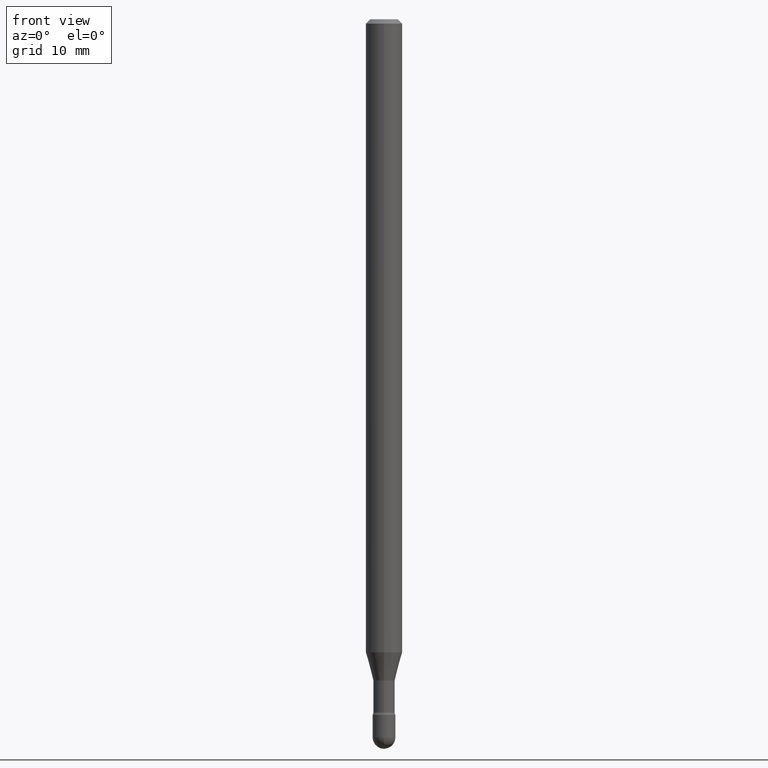
[diagram: clean part render]
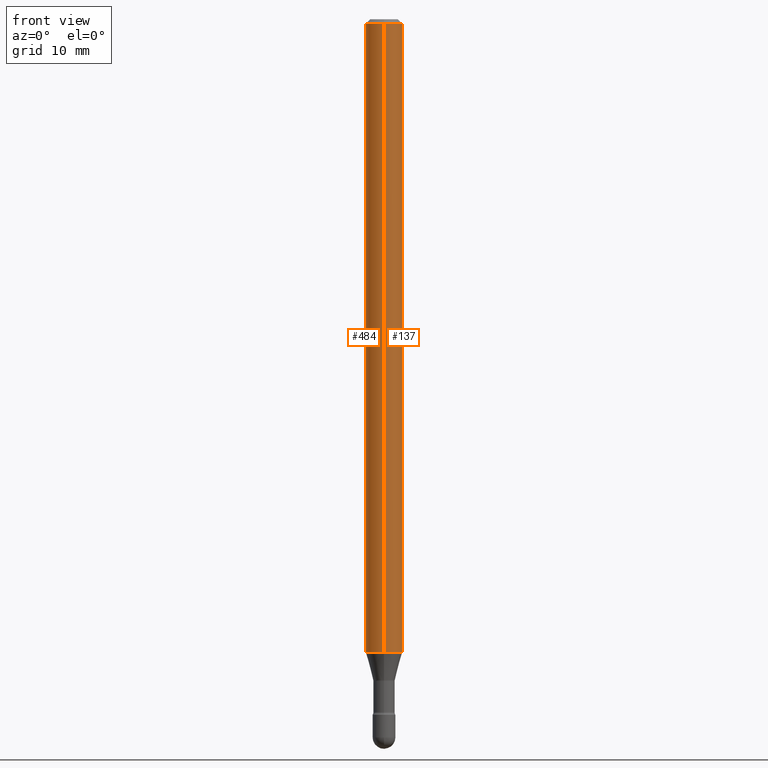
[diagram: same view with one multi-face feature highlighted, each face labeled with its STEP entity id]
A machine part, front view. The highlighted faces form ONE feature: a constant-radius fillet chain: 2 tangent blend faces with common blend radius 1.5875 mm. The faces share edges in the B-rep.
Their STEP definitions:
[1] entity #137 (Cylinder):
#1 = CYLINDRICAL_SURFACE ( 'NONE', #58, 0.06250000000000000000 ) ;
#6 = DIRECTION ( 'NONE',  ( -2.445434904435327590E-29, 3.491529888078439929E-15, 1.000000000000000000 ) ) ;
#16 = DIRECTION ( 'NONE',  ( -2.445434904435327590E-29, 3.491529888078439929E-15, 1.000000000000000000 ) ) ;
#29 = EDGE_CURVE ( 'NONE', #60, #460, #161, .T. ) ;
#39 = CARTESIAN_POINT ( 'NONE',  ( -4.364351673553387171E-16, -0.06250000000000760503, -2.169526486624344663 ) ) ;
#58 = AXIS2_PLACEMENT_3D ( 'NONE', #473, #297, #305 ) ;
#60 = VERTEX_POINT ( 'NONE', #39 ) ;
#81 = CARTESIAN_POINT ( 'NONE',  ( 4.440892098500625669E-16, 0.06250000000000000000, 2.598527808863436170E-16 ) ) ;
#94 = CARTESIAN_POINT ( 'NONE',  ( 4.440892098501160615E-16, 0.06249999999999995837, -0.01500000000000030129 ) ) ;
#95 = AXIS2_PLACEMENT_3D ( 'NONE', #434, #478, #308 ) ;
#124 = VECTOR ( 'NONE', #6, 39.37007874015748143 ) ;
#134 = LINE ( 'NONE', #81, #124 ) ;
#137 = ADVANCED_FACE ( 'NONE', ( #302 ), #1, .T. ) ;
#140 = CARTESIAN_POINT ( 'NONE',  ( -4.364351673553912750E-16, -0.06250000000000005551, -0.01499999999999986587 ) ) ;
#158 = EDGE_CURVE ( 'NONE', #460, #542, #134, .T. ) ;
#161 = CIRCLE ( 'NONE', #195, 0.06250000000000000000 ) ;
#166 = EDGE_CURVE ( 'NONE', #561, #542, #274, .T. ) ;
#174 = DIRECTION ( 'NONE',  ( -6.982962677686265922E-15, -1.000000000000000000, 4.370956789862821150E-15 ) ) ;
#195 = AXIS2_PLACEMENT_3D ( 'NONE', #208, #400, #174 ) ;
#208 = CARTESIAN_POINT ( 'NONE',  ( 5.305435796488117338E-29, -7.574966571026710288E-15, -2.169526486624345107 ) ) ;
#219 = CARTESIAN_POINT ( 'NONE',  ( 4.440892098501153712E-16, 0.06249999999999239497, -2.169526486624345107 ) ) ;
#237 = ORIENTED_EDGE ( 'NONE', *, *, #166, .F. ) ;
#239 = EDGE_CURVE ( 'NONE', #60, #561, #311, .T. ) ;
#267 = VECTOR ( 'NONE', #16, 39.37007874015748143 ) ;
#274 = CIRCLE ( 'NONE', #95, 0.06250000000000000000 ) ;
#297 = DIRECTION ( 'NONE',  ( -2.445434904435327590E-29, 3.491529888078439535E-15, 1.000000000000000000 ) ) ;
#302 = FACE_OUTER_BOUND ( 'NONE', #350, .T. ) ;
#305 = DIRECTION ( 'NONE',  ( -6.982962677686265922E-15, -1.000000000000000000, 3.491529888078439140E-15 ) ) ;
#308 = DIRECTION ( 'NONE',  ( -6.982962677686265922E-15, -1.000000000000000000, 3.483106191921935554E-15 ) ) ;
#311 = LINE ( 'NONE', #488, #267 ) ;
#337 = ORIENTED_EDGE ( 'NONE', *, *, #158, .T. ) ;
#350 = EDGE_LOOP ( 'NONE', ( #416, #337, #237, #507 ) ) ;
#400 = DIRECTION ( 'NONE',  ( -2.445434904435327590E-29, 3.491529888078439535E-15, 1.000000000000000000 ) ) ;
#416 = ORIENTED_EDGE ( 'NONE', *, *, #29, .T. ) ;
#434 = CARTESIAN_POINT ( 'NONE',  ( 3.668152356653011563E-31, -5.237294832117688835E-17, -0.01500000000000008271 ) ) ;
#460 = VERTEX_POINT ( 'NONE', #219 ) ;
#473 = CARTESIAN_POINT ( 'NONE',  ( -1.169113584055446105E-44, 1.669184350826100908E-30, 4.780733988912460139E-16 ) ) ;
#478 = DIRECTION ( 'NONE',  ( -2.445434904435327590E-29, 3.491529888078439535E-15, 1.000000000000000000 ) ) ;
#488 = CARTESIAN_POINT ( 'NONE',  ( -4.364351673553916201E-16, -0.06250000000000000000, 6.962940168961485588E-16 ) ) ;
#507 = ORIENTED_EDGE ( 'NONE', *, *, #239, .F. ) ;
#542 = VERTEX_POINT ( 'NONE', #94 ) ;
#561 = VERTEX_POINT ( 'NONE', #140 ) ;
[2] entity #484 (Cylinder):
#6 = DIRECTION ( 'NONE',  ( -2.445434904435327590E-29, 3.491529888078439929E-15, 1.000000000000000000 ) ) ;
#16 = DIRECTION ( 'NONE',  ( -2.445434904435327590E-29, 3.491529888078439929E-15, 1.000000000000000000 ) ) ;
#39 = CARTESIAN_POINT ( 'NONE',  ( -4.364351673553387171E-16, -0.06250000000000760503, -2.169526486624344663 ) ) ;
#48 = DIRECTION ( 'NONE',  ( -2.445434904435327590E-29, 3.491529888078439535E-15, 1.000000000000000000 ) ) ;
#60 = VERTEX_POINT ( 'NONE', #39 ) ;
#73 = EDGE_CURVE ( 'NONE', #460, #60, #114, .T. ) ;
#76 = ORIENTED_EDGE ( 'NONE', *, *, #158, .F. ) ;
#81 = CARTESIAN_POINT ( 'NONE',  ( 4.440892098500625669E-16, 0.06250000000000000000, 2.598527808863436170E-16 ) ) ;
#94 = CARTESIAN_POINT ( 'NONE',  ( 4.440892098501160615E-16, 0.06249999999999995837, -0.01500000000000030129 ) ) ;
#97 = CARTESIAN_POINT ( 'NONE',  ( -1.169113584055446105E-44, 1.669184350826100908E-30, 4.780733988912460139E-16 ) ) ;
#113 = ORIENTED_EDGE ( 'NONE', *, *, #346, .F. ) ;
#114 = CIRCLE ( 'NONE', #552, 0.06250000000000000000 ) ;
#124 = VECTOR ( 'NONE', #6, 39.37007874015748143 ) ;
#131 = DIRECTION ( 'NONE',  ( -2.445434904435327590E-29, 3.491529888078439535E-15, 1.000000000000000000 ) ) ;
#134 = LINE ( 'NONE', #81, #124 ) ;
#140 = CARTESIAN_POINT ( 'NONE',  ( -4.364351673553912750E-16, -0.06250000000000005551, -0.01499999999999986587 ) ) ;
#158 = EDGE_CURVE ( 'NONE', #460, #542, #134, .T. ) ;
#178 = AXIS2_PLACEMENT_3D ( 'NONE', #347, #48, #536 ) ;
#219 = CARTESIAN_POINT ( 'NONE',  ( 4.440892098501153712E-16, 0.06249999999999239497, -2.169526486624345107 ) ) ;
#239 = EDGE_CURVE ( 'NONE', #60, #561, #311, .T. ) ;
#248 = AXIS2_PLACEMENT_3D ( 'NONE', #97, #492, #499 ) ;
#267 = VECTOR ( 'NONE', #16, 39.37007874015748143 ) ;
#272 = EDGE_LOOP ( 'NONE', ( #76, #285, #368, #113 ) ) ;
#285 = ORIENTED_EDGE ( 'NONE', *, *, #73, .T. ) ;
#311 = LINE ( 'NONE', #488, #267 ) ;
#313 = FACE_OUTER_BOUND ( 'NONE', #272, .T. ) ;
#339 = CARTESIAN_POINT ( 'NONE',  ( 5.305435796488117338E-29, -7.574966571026710288E-15, -2.169526486624345107 ) ) ;
#346 = EDGE_CURVE ( 'NONE', #542, #561, #481, .T. ) ;
#347 = CARTESIAN_POINT ( 'NONE',  ( 3.668152356653011563E-31, -5.237294832117688835E-17, -0.01500000000000008271 ) ) ;
#368 = ORIENTED_EDGE ( 'NONE', *, *, #239, .T. ) ;
#414 = CYLINDRICAL_SURFACE ( 'NONE', #248, 0.06250000000000000000 ) ;
#438 = DIRECTION ( 'NONE',  ( -6.982962677686265922E-15, -1.000000000000000000, 4.370956789862821150E-15 ) ) ;
#460 = VERTEX_POINT ( 'NONE', #219 ) ;
#481 = CIRCLE ( 'NONE', #178, 0.06250000000000000000 ) ;
#484 = ADVANCED_FACE ( 'NONE', ( #313 ), #414, .T. ) ;
#488 = CARTESIAN_POINT ( 'NONE',  ( -4.364351673553916201E-16, -0.06250000000000000000, 6.962940168961485588E-16 ) ) ;
#492 = DIRECTION ( 'NONE',  ( -2.445434904435327590E-29, 3.491529888078439535E-15, 1.000000000000000000 ) ) ;
#499 = DIRECTION ( 'NONE',  ( -6.982962677686265922E-15, -1.000000000000000000, 3.491529888078439140E-15 ) ) ;
#536 = DIRECTION ( 'NONE',  ( -6.982962677686265922E-15, -1.000000000000000000, 3.483106191921935554E-15 ) ) ;
#542 = VERTEX_POINT ( 'NONE', #94 ) ;
#552 = AXIS2_PLACEMENT_3D ( 'NONE', #339, #131, #438 ) ;
#561 = VERTEX_POINT ( 'NONE', #140 ) ;